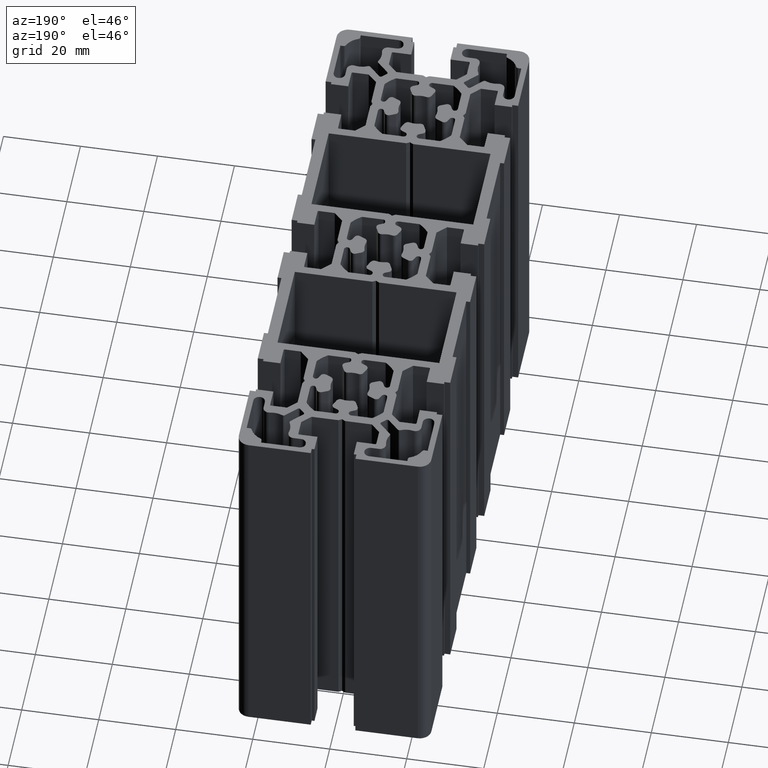
[diagram: clean part render]
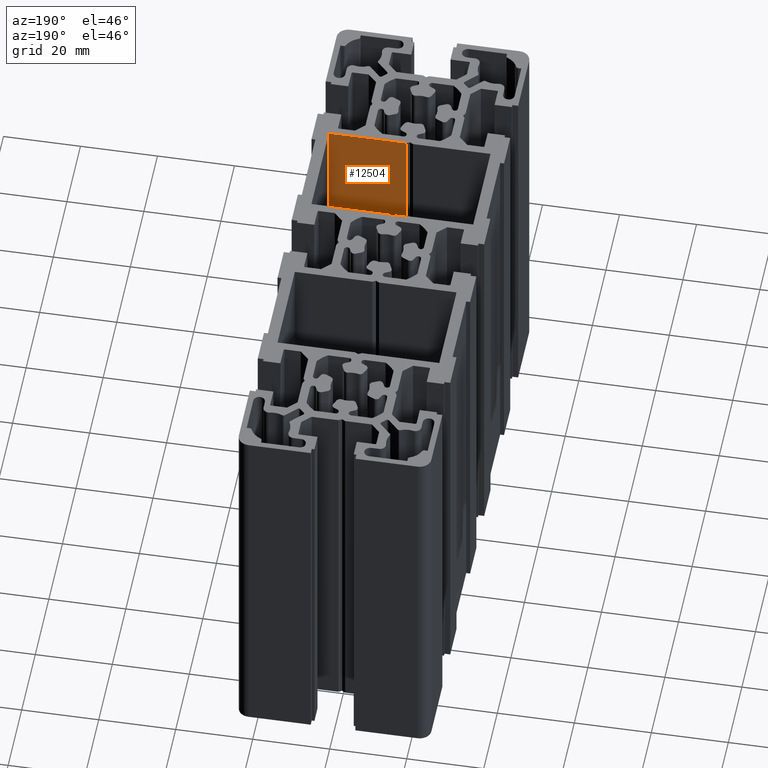
[diagram: same view with one face highlighted and labeled with its STEP entity id]
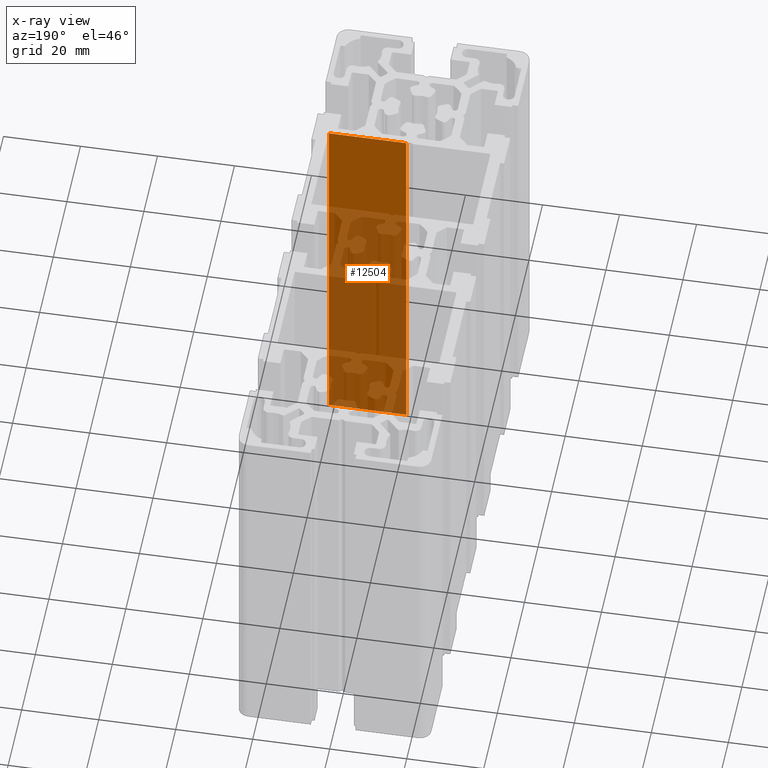
[diagram: x-ray of the same camera — body ghosted, the highlighted face saturated]
A machine part, auxiliary view. The second image highlights one B-rep face of the part: STEP entity #12504.
The next image is the same camera in x-ray: the body ghosted, the highlighted face saturated — about 73% of this face is hidden behind the body in this view.
In plain terms, the highlighted planar face has unit normal (-0, 1, 0).
Its self-contained STEP definition (entity closure, byte-faithful):
#33 = DIRECTION ( 'NONE',  ( 1.000000000000000000, 4.239023676631725300E-014, 0.0000000000000000000 ) ) ;
#34 = VECTOR ( 'NONE', #33, 1000.000000000000000 ) ;
#35 = CARTESIAN_POINT ( 'NONE',  ( 0.8660254037856719400, -37.75000000000086000, 0.0000000000000000000 ) ) ;
#37 = CARTESIAN_POINT ( 'NONE',  ( 21.00000000000110800, -37.75000000000000700, 0.0000000000000000000 ) ) ;
#44 = CARTESIAN_POINT ( 'NONE',  ( 0.8660254037856719400, -37.75000000000086000, 0.0000000000000000000 ) ) ;
#47 = LINE ( 'NONE', #35, #34 ) ;
#5638 = FACE_OUTER_BOUND ( 'NONE', #12524, .T. ) ;
#5655 = DIRECTION ( 'NONE',  ( -0.0000000000000000000, -0.0000000000000000000, -1.000000000000000000 ) ) ;
#5656 = VECTOR ( 'NONE', #5655, 1000.000000000000000 ) ;
#5657 = CARTESIAN_POINT ( 'NONE',  ( 21.00000000000110800, -37.75000000000000700, 100.0000000000000000 ) ) ;
#5663 = DIRECTION ( 'NONE',  ( -1.000000000000000000, -4.239023676631725900E-014, 0.0000000000000000000 ) ) ;
#5664 = DIRECTION ( 'NONE',  ( -4.239023676631725900E-014, 1.000000000000000000, 0.0000000000000000000 ) ) ;
#5665 = CARTESIAN_POINT ( 'NONE',  ( 0.8660254037856719400, -37.75000000000086000, 100.0000000000000000 ) ) ;
#5671 = AXIS2_PLACEMENT_3D ( 'NONE', #5665, #5664, #5663 ) ;
#5681 = LINE ( 'NONE', #5657, #5656 ) ;
#5683 = PLANE ( 'NONE',  #5671 ) ;
#5687 = DIRECTION ( 'NONE',  ( -0.0000000000000000000, -0.0000000000000000000, -1.000000000000000000 ) ) ;
#5688 = VECTOR ( 'NONE', #5687, 1000.000000000000000 ) ;
#5689 = CARTESIAN_POINT ( 'NONE',  ( 0.8660254037856719400, -37.75000000000086000, 100.0000000000000000 ) ) ;
#5690 = LINE ( 'NONE', #5689, #5688 ) ;
#7340 = VERTEX_POINT ( 'NONE', #14705 ) ;
#7367 = VERTEX_POINT ( 'NONE', #14767 ) ;
#7421 = EDGE_CURVE ( 'NONE', #7340, #7367, #14845, .T. ) ;
#8801 = VERTEX_POINT ( 'NONE', #44 ) ;
#8803 = EDGE_CURVE ( 'NONE', #8801, #8805, #47, .T. ) ;
#8805 = VERTEX_POINT ( 'NONE', #37 ) ;
#12504 = ADVANCED_FACE ( 'NONE', ( #5638 ), #5683, .T. ) ;
#12506 = ORIENTED_EDGE ( 'NONE', *, *, #8803, .F. ) ;
#12507 = ORIENTED_EDGE ( 'NONE', *, *, #12531, .F. ) ;
#12508 = EDGE_CURVE ( 'NONE', #7367, #8805, #5681, .T. ) ;
#12509 = ORIENTED_EDGE ( 'NONE', *, *, #7421, .T. ) ;
#12524 = EDGE_LOOP ( 'NONE', ( #12506, #12507, #12509, #12528 ) ) ;
#12528 = ORIENTED_EDGE ( 'NONE', *, *, #12508, .T. ) ;
#12531 = EDGE_CURVE ( 'NONE', #7340, #8801, #5690, .T. ) ;
#14705 = CARTESIAN_POINT ( 'NONE',  ( 0.8660254037856719400, -37.75000000000086000, 100.0000000000000000 ) ) ;
#14767 = CARTESIAN_POINT ( 'NONE',  ( 21.00000000000110800, -37.75000000000000700, 100.0000000000000000 ) ) ;
#14842 = DIRECTION ( 'NONE',  ( 1.000000000000000000, 4.239023676631725300E-014, 0.0000000000000000000 ) ) ;
#14843 = VECTOR ( 'NONE', #14842, 1000.000000000000000 ) ;
#14844 = CARTESIAN_POINT ( 'NONE',  ( 0.8660254037856719400, -37.75000000000086000, 100.0000000000000000 ) ) ;
#14845 = LINE ( 'NONE', #14844, #14843 ) ;